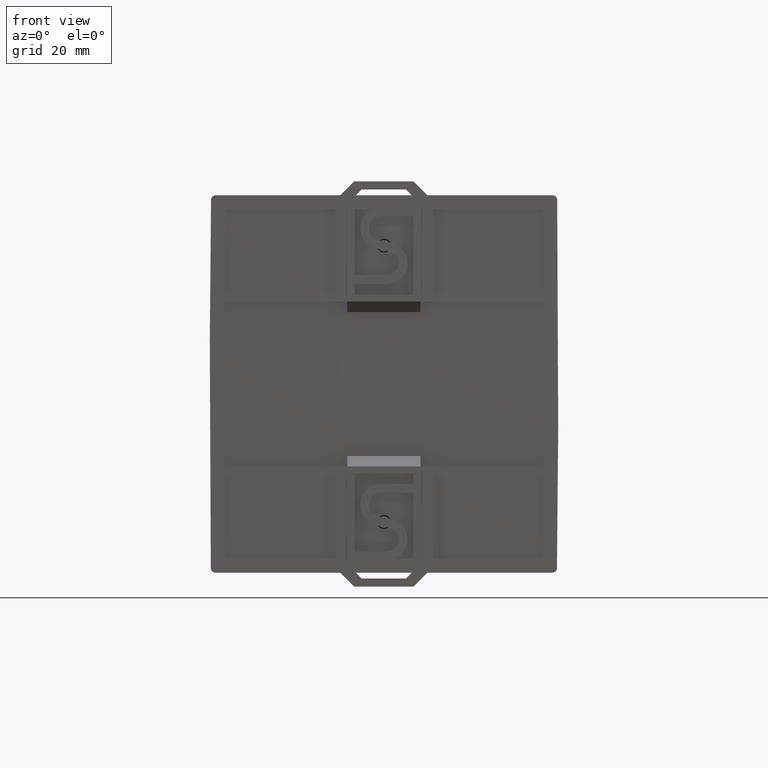
[diagram: clean part render]
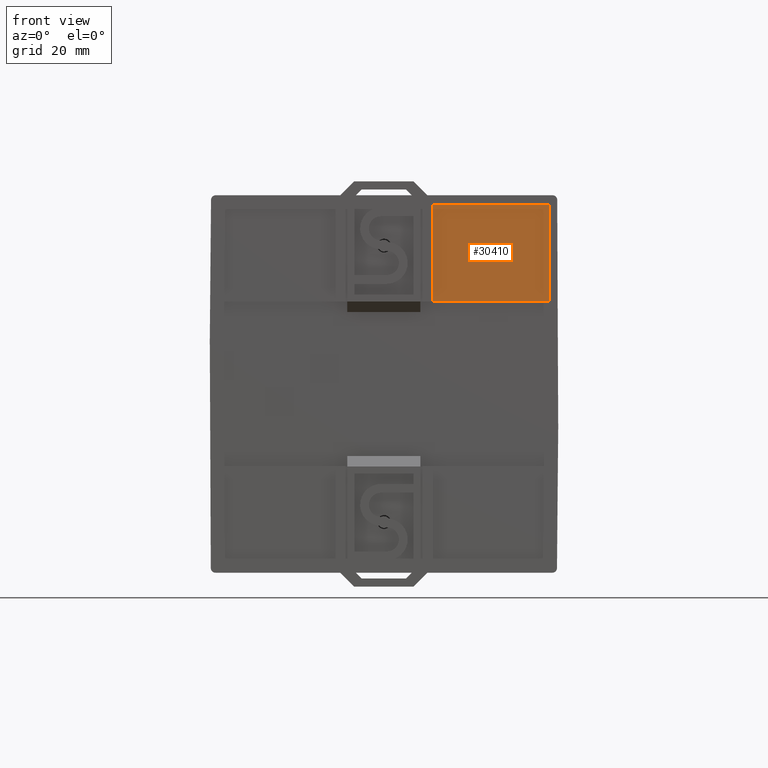
[diagram: same view with one face highlighted and labeled with its STEP entity id]
A machine part, front view. The second image highlights one B-rep face of the part: STEP entity #30410.
In plain terms, the highlighted planar face has unit normal (0, -1, 0).
Its self-contained STEP definition (entity closure, byte-faithful):
#100 = DIRECTION ( 'NONE',  ( -7.000000000000000938E-15, 0.000000000000000000, -1.000000000000000000 ) ) ;
#732 = EDGE_LOOP ( 'NONE', ( #34436, #27145, #19202, #11127 ) ) ;
#1453 = VECTOR ( 'NONE', #100, 39.37007874015748143 ) ;
#2095 = PLANE ( 'NONE',  #25224 ) ;
#3024 = VERTEX_POINT ( 'NONE', #31943 ) ;
#3271 = CARTESIAN_POINT ( 'NONE',  ( 1.421330692535684781, -2.896293787826625721, 0.7949999999999881606 ) ) ;
#7041 = CARTESIAN_POINT ( 'NONE',  ( 0.4213306925356850585, -2.896293787826625721, 0.7950000000000000400 ) ) ;
#9184 = LINE ( 'NONE', #20015, #20694 ) ;
#9890 = FACE_OUTER_BOUND ( 'NONE', #732, .T. ) ;
#11127 = ORIENTED_EDGE ( 'NONE', *, *, #30359, .T. ) ;
#11924 = DIRECTION ( 'NONE',  ( -1.000000000000000000, 0.000000000000000000, 7.000000000000000938E-15 ) ) ;
#13484 = VERTEX_POINT ( 'NONE', #25495 ) ;
#13933 = LINE ( 'NONE', #21934, #32103 ) ;
#15238 = CARTESIAN_POINT ( 'NONE',  ( 1.421330692535681006, -2.896293787826625721, -0.04000000000001079081 ) ) ;
#18940 = LINE ( 'NONE', #33130, #1453 ) ;
#19202 = ORIENTED_EDGE ( 'NONE', *, *, #28981, .T. ) ;
#19493 = DIRECTION ( 'NONE',  ( 7.000000000000000938E-15, 0.000000000000000000, 1.000000000000000000 ) ) ;
#20015 = CARTESIAN_POINT ( 'NONE',  ( 1.421330692535681006, -2.896293787826625721, 0.3774999999999893996 ) ) ;
#20694 = VECTOR ( 'NONE', #19493, 39.37007874015748143 ) ;
#21934 = CARTESIAN_POINT ( 'NONE',  ( 0.9139635750356811528, -2.896293787746625714, -0.04000000000001079081 ) ) ;
#22588 = LINE ( 'NONE', #25752, #28645 ) ;
#24929 = DIRECTION ( 'NONE',  ( 1.000000000000000000, 0.000000000000000000, -7.000000000000000938E-15 ) ) ;
#25224 = AXIS2_PLACEMENT_3D ( 'NONE', #15238, #29066, #34052 ) ;
#25495 = CARTESIAN_POINT ( 'NONE',  ( 0.4213306926654882267, -2.896293787806625719, -0.04000000000000693279 ) ) ;
#25752 = CARTESIAN_POINT ( 'NONE',  ( 0.9213306925356851140, -2.896293787826625721, 0.7949999999999881606 ) ) ;
#25904 = EDGE_CURVE ( 'NONE', #27909, #30503, #22588, .T. ) ;
#27145 = ORIENTED_EDGE ( 'NONE', *, *, #27451, .T. ) ;
#27451 = EDGE_CURVE ( 'NONE', #30503, #13484, #18940, .T. ) ;
#27909 = VERTEX_POINT ( 'NONE', #3271 ) ;
#28645 = VECTOR ( 'NONE', #11924, 39.37007874015748143 ) ;
#28981 = EDGE_CURVE ( 'NONE', #13484, #3024, #13933, .T. ) ;
#29066 = DIRECTION ( 'NONE',  ( 0.000000000000000000, -1.000000000000000000, 0.000000000000000000 ) ) ;
#30359 = EDGE_CURVE ( 'NONE', #3024, #27909, #9184, .T. ) ;
#30410 = ADVANCED_FACE ( 'NONE', ( #9890 ), #2095, .T. ) ;
#30503 = VERTEX_POINT ( 'NONE', #7041 ) ;
#31943 = CARTESIAN_POINT ( 'NONE',  ( 1.421330692584846345, -2.896293787786626162, -0.04000000000001079081 ) ) ;
#32103 = VECTOR ( 'NONE', #24929, 39.37007874015748143 ) ;
#33130 = CARTESIAN_POINT ( 'NONE',  ( 0.4213306925356850585, -2.896293787826625721, 0.3774999999999933964 ) ) ;
#34052 = DIRECTION ( 'NONE',  ( 0.000000000000000000, 0.000000000000000000, -1.000000000000000000 ) ) ;
#34436 = ORIENTED_EDGE ( 'NONE', *, *, #25904, .T. ) ;